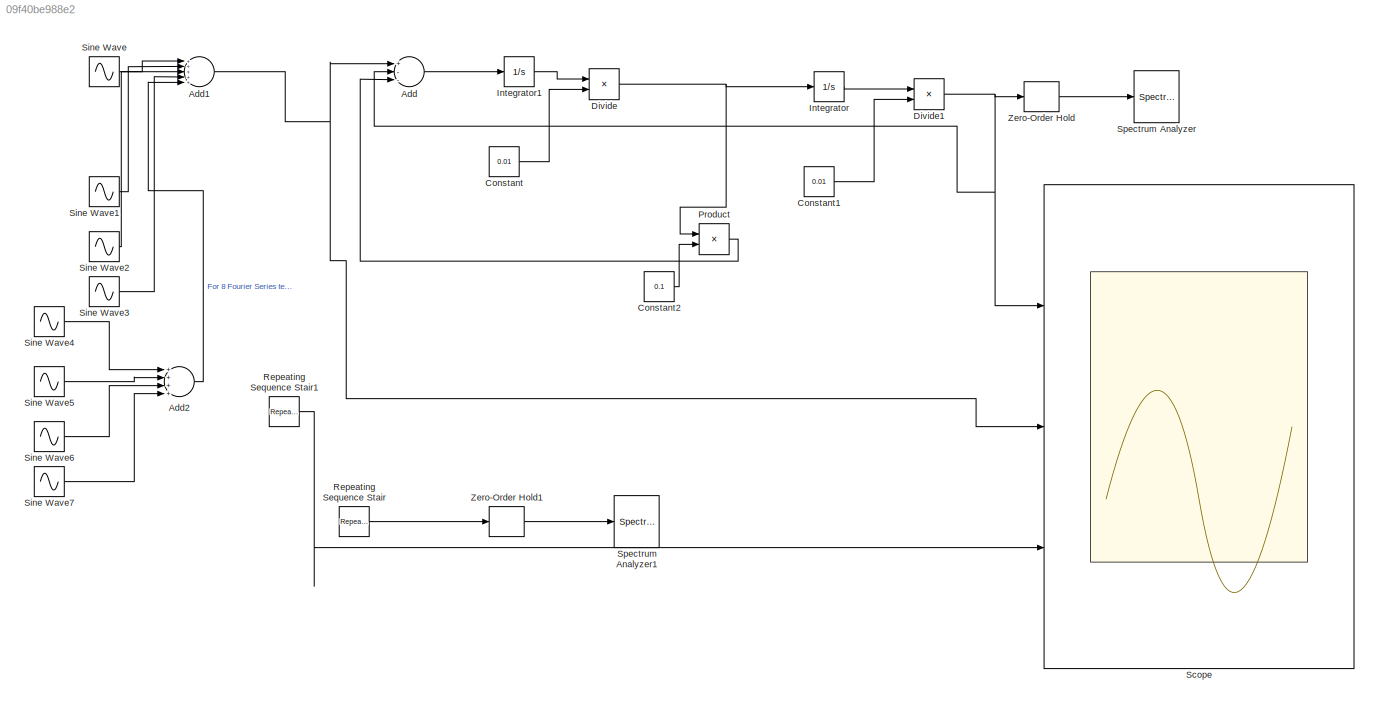
MODEL slx_09f40be988e2
KIND model
CONFIG AbsTol = auto
CONFIG EnableMultiTasking = off
CONFIG FixedStep = auto
CONFIG MaxStep = auto
CONFIG MinStep = auto
CONFIG RelTol = 1e-3
CONFIG SampleTimeConstraint = Unconstrained
CONFIG Solver = VariableStepAuto
CONFIG SolverName = VariableStepAuto
CONFIG StartTime = 0.0
CONFIG StopTime = 10.0
BLOCK [Sum] Add
  InputSameDT = off
  Inputs = +--
  OutDataTypeStr = Inherit: Inherit via internal rule
  Ports = [3, 1]
  SaturateOnIntegerOverflow = off
BLOCK [Sum] Add1
  InputSameDT = off
  Inputs = +++++
  OutDataTypeStr = Inherit: Inherit via internal rule
  Ports = [5, 1]
  SaturateOnIntegerOverflow = off
BLOCK [Sum] Add2
  InputSameDT = off
  Inputs = ++++
  OutDataTypeStr = Inherit: Inherit via internal rule
  Ports = [4, 1]
  SaturateOnIntegerOverflow = off
BLOCK [Constant] Constant
  Value = 0.01
BLOCK [Constant] Constant1
  Value = 0.01
BLOCK [Constant] Constant2
  Value = 0.1
BLOCK [Product] Divide
  InputSameDT = off
  Inputs = */
  OutDataTypeStr = Inherit: Inherit via internal rule
  Ports = [2, 1]
  RndMeth = Floor
  SaturateOnIntegerOverflow = off
BLOCK [Product] Divide1
  InputSameDT = off
  Inputs = */
  OutDataTypeStr = Inherit: Inherit via internal rule
  Ports = [2, 1]
  RndMeth = Floor
  SaturateOnIntegerOverflow = off
BLOCK [Integrator] Integrator
  Ports = [1, 1]
BLOCK [Integrator] Integrator1
  Ports = [1, 1]
BLOCK [Product] Product
  InputSameDT = off
  OutDataTypeStr = Inherit: Inherit via internal rule
  Ports = [2, 1]
  RndMeth = Floor
  SaturateOnIntegerOverflow = off
BLOCK [Reference] Repeating Sequence Stair  REF=simulink/Sources/Repeating
Sequence
Stair
  Ports = [0, 1]
  SourceBlock = simulink/Sources/Repeating\nSequence\nStair
  SourceProductBaseCode = SL
  SourceProductName = Simulink
  SourceType = Repeating Sequence Stair
BLOCK [Reference] Repeating Sequence Stair1  REF=simulink/Sources/Repeating
Sequence
Stair
  Ports = [0, 1]
  SourceBlock = simulink/Sources/Repeating\nSequence\nStair
  SourceProductBaseCode = SL
  SourceProductName = Simulink
  SourceType = Repeating Sequence Stair
BLOCK [Scope] Scope
  Floating = off
  NumInputPorts = 3
  Ports = [3]
  ScopeSpecificationString = Simulink.scopes.TimeScopeBlockCfg('CurrentConfiguration', extmgr.ConfigurationSet(extmgr.Configuration('Core','General UI',true),extmgr.Configuration('Core','Source UI',true),extmgr.Configuration('Sources','WiredSimulink',true),extmgr.Configuration('Visuals','Time Domain',true,'SerializedDisplays',{struct('MinYLimReal','-1.48028','MaxYLimReal','1.37391','YLabelReal','','MinYLimMag','0.00000','MaxY...<+1462ch>
BLOCK [Sin] Sine Wave
  Amplitude = 4/pi
  Frequency = 64*pi
  Ports = [0, 1]
  SampleTime = 2^(-14)
BLOCK [Sin] Sine Wave1
  Amplitude = 4/(3*pi)
  Frequency = 192*pi
  Ports = [0, 1]
  SampleTime = 2^(-14)
BLOCK [Sin] Sine Wave2
  Amplitude = 4/(5*pi)
  Frequency = 320*pi
  Ports = [0, 1]
  SampleTime = 2^(-14)
BLOCK [Sin] Sine Wave3
  Amplitude = 4/(7*pi)
  Frequency = 448*pi
  Ports = [0, 1]
  SampleTime = 2^(-14)
BLOCK [Sin] Sine Wave4
  Amplitude = 4/(9*pi)
  Frequency = 64*pi*9
  Ports = [0, 1]
  SampleTime = 2^(-14)
BLOCK [Sin] Sine Wave5
  Amplitude = 4/(11*pi)
  Frequency = 64*pi*11
  Ports = [0, 1]
  SampleTime = 2^(-14)
BLOCK [Sin] Sine Wave6
  Amplitude = 4/(13*pi)
  Frequency = 64*pi*13
  Ports = [0, 1]
  SampleTime = 2^(-14)
BLOCK [Sin] Sine Wave7
  Amplitude = 4/(15*pi)
  Frequency = 64*pi*15
  Ports = [0, 1]
  SampleTime = 2^(-14)
BLOCK [SpectrumAnalyzer] Spectrum Analyzer
  Ports = [1]
  ScopeSpecificationString = spbscopes.SpectrumAnalyzerBlockCfg('CurrentConfiguration', extmgr.ConfigurationSet(extmgr.Configuration('Core','General UI',true),extmgr.Configuration('Core','Source UI',true),extmgr.Configuration('Sources','WiredSimulink',true),extmgr.Configuration('Visuals','Spectrum',true,'AxesProperties',struct('Color',{[0 0 0],[0 0 0]},'XColor',{[0.686274509803922 0.686274509803922 0.686274509803922],[0.68627...<+2016ch>
BLOCK [SpectrumAnalyzer] Spectrum Analyzer1
  Ports = [1]
  ScopeSpecificationString = spbscopes.SpectrumAnalyzerBlockCfg('CurrentConfiguration', extmgr.ConfigurationSet(extmgr.Configuration('Core','General UI',true),extmgr.Configuration('Core','Source UI',true),extmgr.Configuration('Sources','WiredSimulink',true),extmgr.Configuration('Visuals','Spectrum',true,'AxesProperties',struct('Color',{[0 0 0],[0 0 0]},'XColor',{[0.686274509803922 0.686274509803922 0.686274509803922],[0.68627...<+2015ch>
BLOCK [ZeroOrderHold] Zero-Order Hold
  SampleTime = 2^(-10)
BLOCK [ZeroOrderHold] Zero-Order Hold1
  SampleTime = 2^(-10)
NET Add1:1 -> Add:1, Scope:2
LINE Add2:1 -> Add1:5
LINE Add:1 -> Integrator1:1
LINE Constant1:1 -> Divide1:2
LINE Constant2:1 -> Product:2
LINE Constant:1 -> Divide:2
NET Divide1:1 -> Add:2, Scope:1, Zero-Order Hold:1
NET Divide:1 -> Integrator:1, Product:1
LINE Integrator1:1 -> Divide:1
LINE Integrator:1 -> Divide1:1
LINE Product:1 -> Add:3
LINE Repeating Sequence Stair1:1 -> Scope:3
LINE Repeating Sequence Stair:1 -> Zero-Order Hold1:1
LINE Sine Wave1:1 -> Add1:2
LINE Sine Wave2:1 -> Add1:3
LINE Sine Wave3:1 -> Add1:4
LINE Sine Wave4:1 -> Add2:1
LINE Sine Wave5:1 -> Add2:2
LINE Sine Wave6:1 -> Add2:3
LINE Sine Wave7:1 -> Add2:4
LINE Sine Wave:1 -> Add1:1
LINE Zero-Order Hold1:1 -> Spectrum Analyzer1:1
LINE Zero-Order Hold:1 -> Spectrum Analyzer:1
note: NET lines group one-source signal fan-out (src -> all destinations, sorted); 1:1 wires keep LINE
